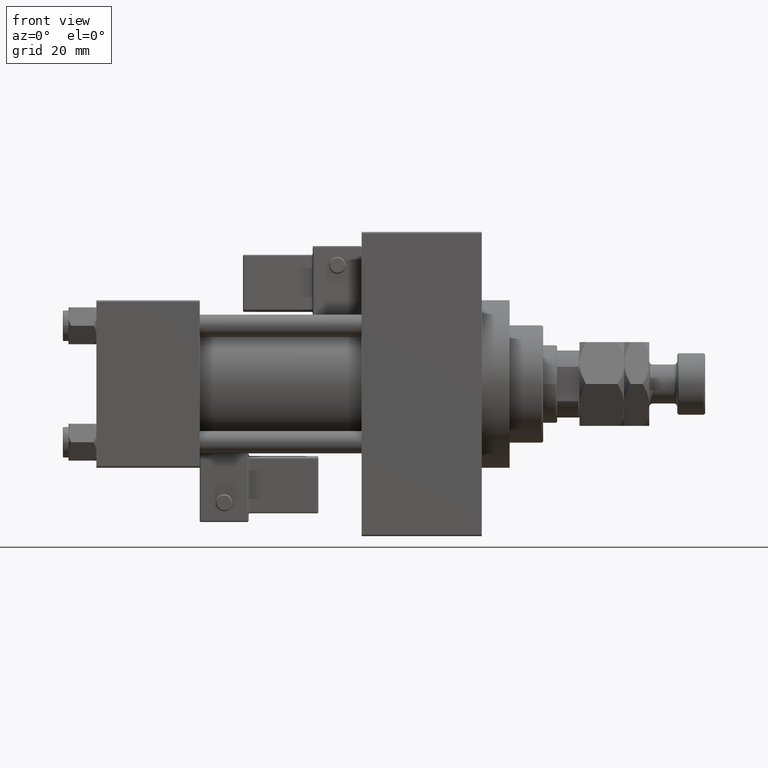
[diagram: clean part render]
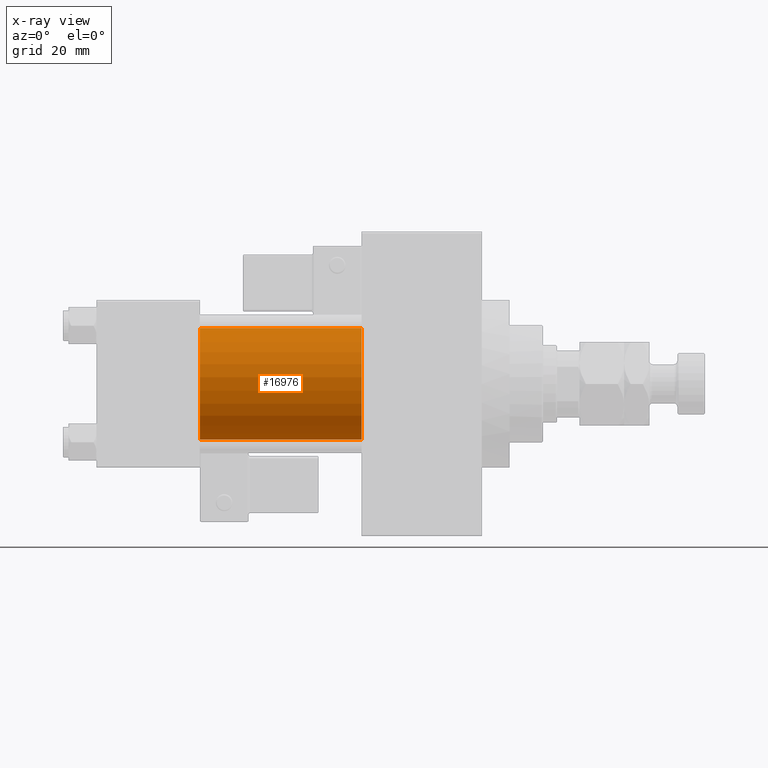
[diagram: x-ray — body ghosted, one internal face saturated and labeled with its STEP entity id]
A machine part, front view, then the same camera in x-ray: the body is ghosted and one INTERNAL B-rep face — a face not visible from any outside direction — is saturated and labeled: STEP entity #16976.
In plain terms, the highlighted cylindrical surface (partial cylindrical patch) has radius 20 mm, axis along (-1, -0, -0).
Its self-contained STEP definition (entity closure, byte-faithful):
#5891 = AXIS2_PLACEMENT_3D ( 'NONE', #16411, #28118, #15396 ) ;
#6378 = CARTESIAN_POINT ( 'NONE',  ( 95.00000000000000000, -2.602085213965210642E-15, 20.00000000000000000 ) ) ;
#7658 = CARTESIAN_POINT ( 'NONE',  ( 95.00000000000000000, -1.527916156705046464E-16, -20.00000000000000000 ) ) ;
#12148 = VERTEX_POINT ( 'NONE', #31045 ) ;
#14982 = CARTESIAN_POINT ( 'NONE',  ( 95.00000000000000000, -2.602085213965210642E-15, 0.000000000000000000 ) ) ;
#15396 = DIRECTION ( 'NONE',  ( 0.000000000000000000, 0.000000000000000000, -1.000000000000000000 ) ) ;
#15504 = EDGE_LOOP ( 'NONE', ( #40764, #40830, #46695, #49838 ) ) ;
#16203 = LINE ( 'NONE', #7658, #24264 ) ;
#16411 = CARTESIAN_POINT ( 'NONE',  ( 95.00000000000000000, -2.602085213965210642E-15, 0.000000000000000000 ) ) ;
#16976 = ADVANCED_FACE ( 'NONE', ( #34744 ), #50612, .F. ) ;
#18168 = DIRECTION ( 'NONE',  ( 1.000000000000000000, 0.000000000000000000, 0.000000000000000000 ) ) ;
#19142 = DIRECTION ( 'NONE',  ( -1.000000000000000000, -0.000000000000000000, -0.000000000000000000 ) ) ;
#21289 = EDGE_CURVE ( 'NONE', #28436, #34396, #37841, .T. ) ;
#21519 = AXIS2_PLACEMENT_3D ( 'NONE', #34037, #18168, #49905 ) ;
#22190 = EDGE_CURVE ( 'NONE', #34396, #30907, #38152, .T. ) ;
#24264 = VECTOR ( 'NONE', #39369, 1000.000000000000000 ) ;
#25474 = EDGE_CURVE ( 'NONE', #28436, #12148, #32459, .T. ) ;
#26018 = CARTESIAN_POINT ( 'NONE',  ( 37.00000000000000000, -1.527916156705046464E-16, -20.00000000000000000 ) ) ;
#28118 = DIRECTION ( 'NONE',  ( 1.000000000000000000, 0.000000000000000000, 0.000000000000000000 ) ) ;
#28436 = VERTEX_POINT ( 'NONE', #31182 ) ;
#30907 = VERTEX_POINT ( 'NONE', #26018 ) ;
#31045 = CARTESIAN_POINT ( 'NONE',  ( 95.00000000000000000, -1.527916156705046464E-16, -20.00000000000000000 ) ) ;
#31182 = CARTESIAN_POINT ( 'NONE',  ( 95.00000000000000000, -2.602085213965210642E-15, 20.00000000000000000 ) ) ;
#32459 = CIRCLE ( 'NONE', #5891, 20.00000000000000000 ) ;
#33816 = AXIS2_PLACEMENT_3D ( 'NONE', #14982, #19142, #35001 ) ;
#34037 = CARTESIAN_POINT ( 'NONE',  ( 37.00000000000000000, -2.602085213965210642E-15, 0.000000000000000000 ) ) ;
#34396 = VERTEX_POINT ( 'NONE', #36445 ) ;
#34744 = FACE_OUTER_BOUND ( 'NONE', #15504, .T. ) ;
#35001 = DIRECTION ( 'NONE',  ( 0.000000000000000000, 0.000000000000000000, 1.000000000000000000 ) ) ;
#35708 = DIRECTION ( 'NONE',  ( -1.000000000000000000, -0.000000000000000000, -0.000000000000000000 ) ) ;
#36445 = CARTESIAN_POINT ( 'NONE',  ( 37.00000000000000000, -2.602085213965210642E-15, 20.00000000000000000 ) ) ;
#37841 = LINE ( 'NONE', #6378, #51346 ) ;
#38152 = CIRCLE ( 'NONE', #21519, 20.00000000000000000 ) ;
#39369 = DIRECTION ( 'NONE',  ( -1.000000000000000000, -0.000000000000000000, -0.000000000000000000 ) ) ;
#40764 = ORIENTED_EDGE ( 'NONE', *, *, #25474, .T. ) ;
#40830 = ORIENTED_EDGE ( 'NONE', *, *, #42588, .T. ) ;
#42588 = EDGE_CURVE ( 'NONE', #12148, #30907, #16203, .T. ) ;
#46695 = ORIENTED_EDGE ( 'NONE', *, *, #22190, .F. ) ;
#49838 = ORIENTED_EDGE ( 'NONE', *, *, #21289, .F. ) ;
#49905 = DIRECTION ( 'NONE',  ( 0.000000000000000000, 0.000000000000000000, -1.000000000000000000 ) ) ;
#50612 = CYLINDRICAL_SURFACE ( 'NONE', #33816, 20.00000000000000000 ) ;
#51346 = VECTOR ( 'NONE', #35708, 1000.000000000000000 ) ;